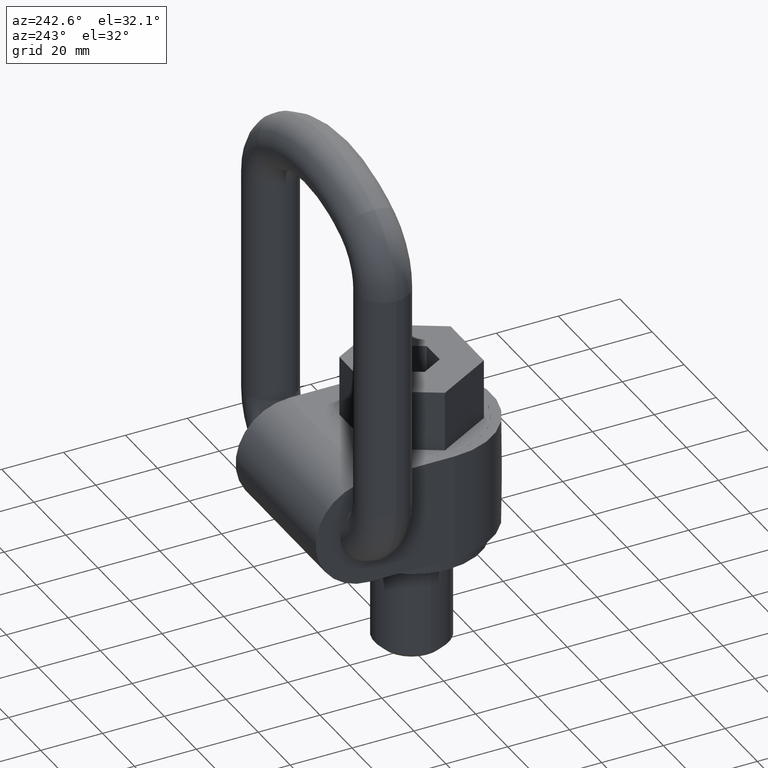
[diagram: clean part render]
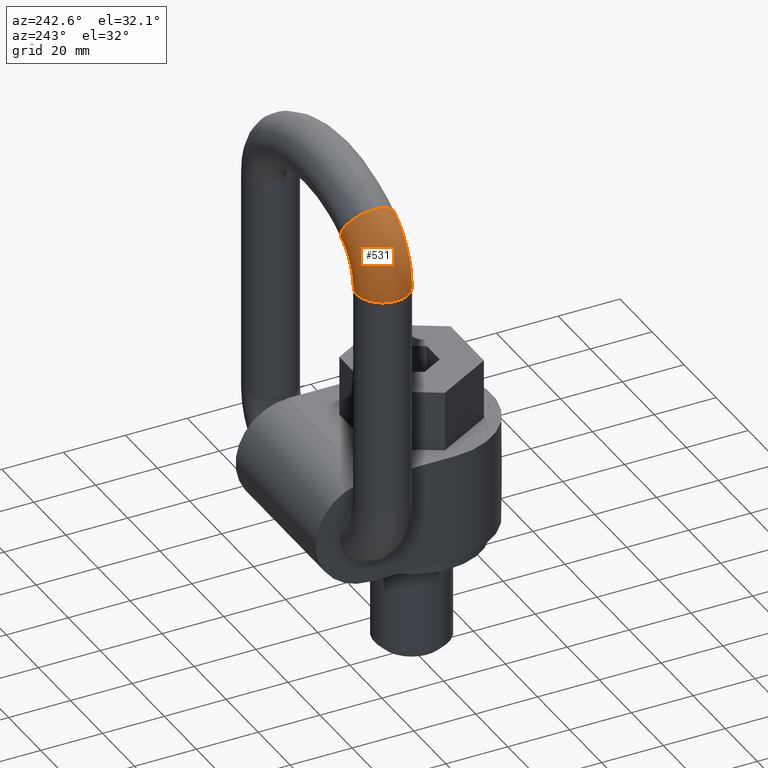
[diagram: same view with one face highlighted and labeled with its STEP entity id]
A machine part, auxiliary view. The second image highlights one B-rep face of the part: STEP entity #531.
In plain terms, the highlighted toroidal blend (fillet) surface has major radius 18.5 mm and minor (blend) radius 8.5 mm.
Its self-contained STEP definition (entity closure, byte-faithful):
#241=TOROIDAL_SURFACE('',#2544,18.5,8.5);
#531=ADVANCED_FACE('',(#617,#618),#241,.T.);
#617=FACE_BOUND('',#779,.T.);
#618=FACE_BOUND('',#780,.T.);
#779=EDGE_LOOP('',(#1720));
#780=EDGE_LOOP('',(#1721));
#1116=CIRCLE('',#2541,8.5);
#1117=CIRCLE('',#2543,8.5);
#1720=ORIENTED_EDGE('',*,*,#2239,.T.);
#1721=ORIENTED_EDGE('',*,*,#2238,.F.);
#1934=VERTEX_POINT('',#5190);
#1935=VERTEX_POINT('',#5193);
#2238=EDGE_CURVE('',#1934,#1934,#1116,.T.);
#2239=EDGE_CURVE('',#1935,#1935,#1117,.T.);
#2541=AXIS2_PLACEMENT_3D('',#5189,#2971,#2972);
#2543=AXIS2_PLACEMENT_3D('',#5192,#2975,#2976);
#2544=AXIS2_PLACEMENT_3D('',#5194,#2977,#2978);
#2971=DIRECTION('',(-6.10622663543836E-16,0.,-1.));
#2972=DIRECTION('',(-1.,0.,0.));
#2975=DIRECTION('',(-0.870291327588851,0.,-0.492537313432836));
#2976=DIRECTION('',(-0.492537313432836,0.,0.870291327588852));
#2977=DIRECTION('',(0.,-1.,0.));
#2978=DIRECTION('',(0.,0.,-1.));
#5189=CARTESIAN_POINT('',(-35.,27.5,105.654759474227));
#5190=CARTESIAN_POINT('',(-43.5,27.5,105.654759474227));
#5192=CARTESIAN_POINT('',(-25.6119402985074,27.5,121.75514903462));
#5193=CARTESIAN_POINT('',(-29.7985074626865,27.5,129.152625319125));
#5194=CARTESIAN_POINT('',(-16.5,27.5,105.654759474226));